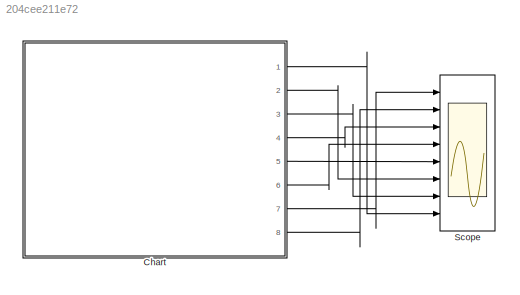
MODEL slx_204cee211e72
KIND model
CONFIG AbsTol = auto
CONFIG EnableMultiTasking = off
CONFIG FixedStep = auto
CONFIG MaxStep = auto
CONFIG MinStep = auto
CONFIG RelTol = 1e-3
CONFIG SampleTimeConstraint = Unconstrained
CONFIG Solver = VariableStepAuto
CONFIG SolverName = VariableStepAuto
CONFIG StartTime = 0.0
CONFIG StopTime = 100
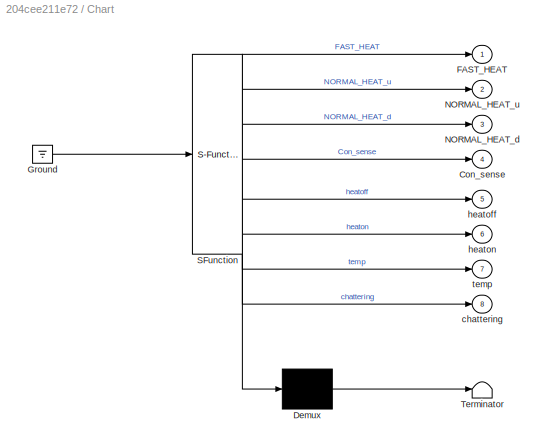
BLOCK [SubSystem] Chart
  ErrorFcn = Stateflow.Translate.translate
  PermitHierarchicalResolution = ExplicitOnly
  PortSchema = {"entries":[{"content":{"sides":[{"content":{"connectorIds":[]},"type":"ConnectorPlacement.EquallySpacedRectSide","uuid":"c6a87a37-078d-45e8-a3e3-cabe2857dc14"},{"content":{"connectorIds":["Out7","Out8","Out4","Out6","Out5","Out2","Out3","Out1"],"side":"RIGHT"},"type":"ConnectorPlacement.EquallySpacedRectSide","uuid":"e30d9a30-9c68-4d81-be3e-0648123adae3"},{"content":{"connectorIds":[],"side":"TOP...<+286ch>
  Ports = [0, 8]
  RequestExecContextInheritance = off
  SFBlockType = Chart
  TreatAsAtomicUnit = on
BLOCK [Demux] Chart/ Demux 
  Outputs = 1
  Ports = [1, 1]
BLOCK [Ground] Chart/ Ground 
BLOCK [S-Function] Chart/ SFunction 
  EnableBusSupport = on
  FunctionName = sf_sfun
  PortCounts = [1 9]
  Ports = [1, 9]
  SFcnIsStateOwnerBlock = off
  SFunctionDeploymentMode = off
  Tag = Stateflow S-Function 3
BLOCK [Terminator] Chart/ Terminator 
BLOCK [Outport] Chart/Con_sense
  Port = 4
BLOCK [Outport] Chart/FAST_HEAT
BLOCK [Outport] Chart/NORMAL_HEAT_d
  Port = 3
BLOCK [Outport] Chart/NORMAL_HEAT_u
  Port = 2
BLOCK [Outport] Chart/chattering
  Port = 8
BLOCK [Outport] Chart/heatoff
  Port = 5
BLOCK [Outport] Chart/heaton
  Port = 6
BLOCK [Outport] Chart/temp
  Port = 7
BLOCK [Scope] Scope
  Floating = off
  NumInputPorts = 8
  Ports = [8]
  ScopeSpecificationString = Simulink.scopes.TimeScopeBlockCfg('CurrentConfiguration', extmgr.ConfigurationSet(extmgr.Configuration('Core','General UI',true),extmgr.Configuration('Core','Source UI',true),extmgr.Configuration('Sources','WiredSimulink',true),extmgr.Configuration('Visuals','Time Domain',true,'SerializedDisplays',{struct('MinYLimReal','48.625','MaxYLimReal','72.375','YLabelReal','','MinYLimMag','48.625','MaxYLimM...<+6252ch>
LINE Chart:1 -> Scope:8
LINE Chart:2 -> Scope:6
LINE Chart:3 -> Scope:7
LINE Chart:4 -> Scope:3
LINE Chart:5 -> Scope:5
LINE Chart:6 -> Scope:4
LINE Chart:7 -> Scope:1
LINE Chart:8 -> Scope:2
CHART Chart states=8 transitions=11
  STATE_LABEL 'FAST_HEAT\n\n50<temp <66;\nCon_sense=2;%much low to create equi\nFAST_HEAT=2;\ntemp;\ntemp=temp+2;\nheaton=2;\nheatoff=0;\n'
  STATE_LABEL 'NORMAL_HEAT_u \n\n66<temp<70;\nCon_sense=1;%temp crossing limit 70 high\nNORMAL_HEAT_u=1;\nFAST_HEAT=0;\nNORMAL_HEAT_d=0;\nheaton=1;\nheatoff=0;\ntemp=temp+1;\nFAST_HEAT=0;\n%c;\n%c=c+1;\n'
  STATE_LABEL 'Controller_check\ntemp=50;\n55< temp <75;\ntemp=temp+1;\n%temp;\nCon_sense=0;\nFAST_HEAT=0;\nNORMAL_HEAT_u=0;\nNORMAL_HEAT_d=0;\nheaton=1;\nheatoff=0;\nCon_sense=1;\nc1=0;\nc2=0;\n%c=c+1;\nFAST_HEAT=0;\n'
  STATE_LABEL 'initial 55° to 75° F and controller mode is OFF\n\nNORMAL_HEAT m-M\nMAX_Temp 70 above on   heatoff\nMIN_Temp 66 below off    heaton\n\nFAST_HEAT lower than MIN_Temp\n\nconsecutively switches operation mode more than CHATTERING_LIMIT(2) , \nthen it continues operating in previous mode without switching till next 5 sampling duration.\n'
  STATE_LABEL '50<'
  STATE_LABEL 'NORMAL_HEAT_d%only dec below 70 if high\n\n60<temp <75;\nCon_sense=-1;%low till 66\nNORMAL_HEAT_d=-1;\nFAST_HEAT=0;\nNORMAL_HEAT_u=0;\nheatoff=1;\nheaton=0;\ntemp=temp-1;\n'
  STATE_LABEL 'chattering\n%chattering=1;\nc1=0;\nc2=0;\n'
  STATE_LABEL 'at(7,tick)[temp > 98.6]'
CHART  states=0 transitions=0
